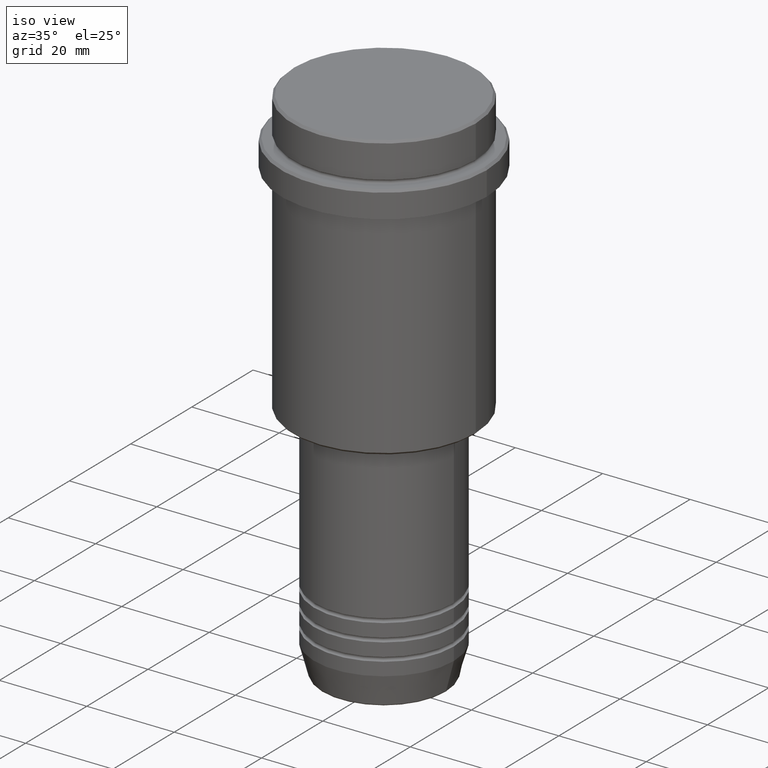
[diagram: clean part render]
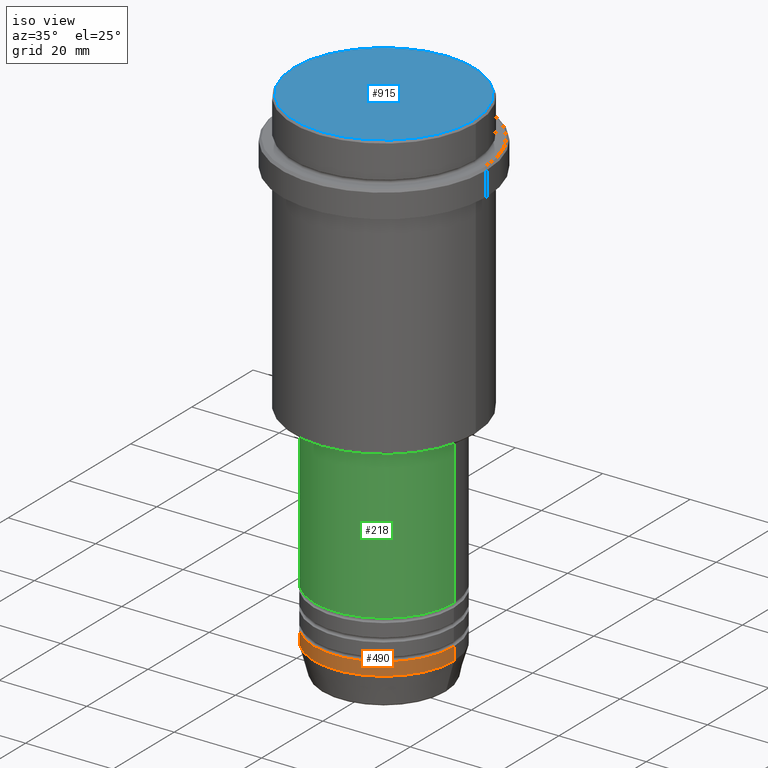
[diagram: same view with three faces highlighted in distinct colors, each labeled with its STEP entity id]
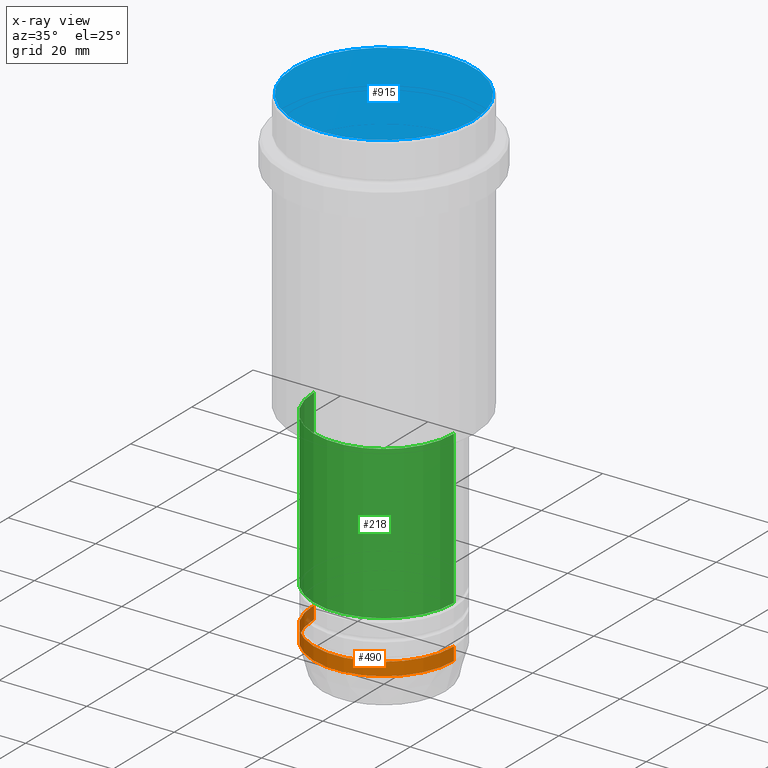
[diagram: x-ray of the same camera — body ghosted, the three highlighted faces saturated]
A machine part, iso view with three faces highlighted in distinct colors.
The next image is the same camera in x-ray (body ghosted, the three faces saturated) — at least one of them is partly hidden behind the body in this view.
Their STEP definitions:

[orange] entity #490 — the highlighted cylindrical surface (partial cylindrical patch) has radius 16 mm, axis along (-0, -0, 1).
#20 = CARTESIAN_POINT ( 'NONE',  ( 16.00000000000000000, 0.000000000000000000, -113.0000000000000000 ) ) ;
#25 = ORIENTED_EDGE ( 'NONE', *, *, #1344, .F. ) ;
#40 = DIRECTION ( 'NONE',  ( -0.000000000000000000, -0.000000000000000000, 1.000000000000000000 ) ) ;
#80 = VECTOR ( 'NONE', #1013, 1000.000000000000000 ) ;
#170 = CIRCLE ( 'NONE', #691, 16.00000000000000000 ) ;
#182 = ORIENTED_EDGE ( 'NONE', *, *, #1391, .T. ) ;
#193 = ORIENTED_EDGE ( 'NONE', *, *, #373, .F. ) ;
#203 = CARTESIAN_POINT ( 'NONE',  ( -16.00000000000000000, 1.959434878635765131E-15, -113.0000000000000000 ) ) ;
#210 = ORIENTED_EDGE ( 'NONE', *, *, #872, .T. ) ;
#214 = VECTOR ( 'NONE', #289, 1000.000000000000000 ) ;
#289 = DIRECTION ( 'NONE',  ( -0.000000000000000000, -0.000000000000000000, 1.000000000000000000 ) ) ;
#291 = CYLINDRICAL_SURFACE ( 'NONE', #1169, 16.00000000000000000 ) ;
#373 = EDGE_CURVE ( 'NONE', #638, #869, #936, .T. ) ;
#393 = CARTESIAN_POINT ( 'NONE',  ( 16.00000000000000000, 0.000000000000000000, -110.0000000000000000 ) ) ;
#420 = EDGE_LOOP ( 'NONE', ( #193, #182, #210, #25 ) ) ;
#467 = DIRECTION ( 'NONE',  ( 1.000000000000000000, 0.000000000000000000, 0.000000000000000000 ) ) ;
#490 = ADVANCED_FACE ( 'NONE', ( #848 ), #291, .T. ) ;
#513 = VERTEX_POINT ( 'NONE', #393 ) ;
#638 = VERTEX_POINT ( 'NONE', #203 ) ;
#678 = LINE ( 'NONE', #1224, #80 ) ;
#691 = AXIS2_PLACEMENT_3D ( 'NONE', #1035, #1057, #1145 ) ;
#848 = FACE_OUTER_BOUND ( 'NONE', #420, .T. ) ;
#869 = VERTEX_POINT ( 'NONE', #924 ) ;
#872 = EDGE_CURVE ( 'NONE', #1158, #513, #678, .T. ) ;
#924 = CARTESIAN_POINT ( 'NONE',  ( -16.00000000000000000, 1.959434878635765131E-15, -110.0000000000000000 ) ) ;
#936 = LINE ( 'NONE', #1374, #214 ) ;
#1013 = DIRECTION ( 'NONE',  ( -0.000000000000000000, -0.000000000000000000, 1.000000000000000000 ) ) ;
#1020 = CARTESIAN_POINT ( 'NONE',  ( 0.000000000000000000, 0.000000000000000000, -110.0000000000000000 ) ) ;
#1035 = CARTESIAN_POINT ( 'NONE',  ( 0.000000000000000000, 0.000000000000000000, -113.0000000000000000 ) ) ;
#1057 = DIRECTION ( 'NONE',  ( -0.000000000000000000, -0.000000000000000000, 1.000000000000000000 ) ) ;
#1089 = DIRECTION ( 'NONE',  ( 1.000000000000000000, 0.000000000000000000, 0.000000000000000000 ) ) ;
#1128 = AXIS2_PLACEMENT_3D ( 'NONE', #1020, #40, #467 ) ;
#1145 = DIRECTION ( 'NONE',  ( 1.000000000000000000, 0.000000000000000000, 0.000000000000000000 ) ) ;
#1158 = VERTEX_POINT ( 'NONE', #20 ) ;
#1169 = AXIS2_PLACEMENT_3D ( 'NONE', #1401, #1182, #1089 ) ;
#1182 = DIRECTION ( 'NONE',  ( -0.000000000000000000, -0.000000000000000000, 1.000000000000000000 ) ) ;
#1224 = CARTESIAN_POINT ( 'NONE',  ( 16.00000000000000000, 0.000000000000000000, 0.000000000000000000 ) ) ;
#1261 = CIRCLE ( 'NONE', #1128, 16.00000000000000000 ) ;
#1344 = EDGE_CURVE ( 'NONE', #869, #513, #1261, .T. ) ;
#1374 = CARTESIAN_POINT ( 'NONE',  ( -16.00000000000000000, 1.959434878635765131E-15, 0.000000000000000000 ) ) ;
#1391 = EDGE_CURVE ( 'NONE', #638, #1158, #170, .T. ) ;
#1401 = CARTESIAN_POINT ( 'NONE',  ( 0.000000000000000000, 0.000000000000000000, 0.000000000000000000 ) ) ;

[blue] entity #915 — the highlighted planar face has unit normal (0, -0, 1).
#46 = DIRECTION ( 'NONE',  ( 1.000000000000000000, 0.000000000000000000, 0.000000000000000000 ) ) ;
#57 = AXIS2_PLACEMENT_3D ( 'NONE', #796, #683, #46 ) ;
#112 = CARTESIAN_POINT ( 'NONE',  ( -20.50000000000001776, 0.000000000000000000, 0.000000000000000000 ) ) ;
#166 = DIRECTION ( 'NONE',  ( -0.000000000000000000, -0.000000000000000000, 1.000000000000000000 ) ) ;
#172 = EDGE_LOOP ( 'NONE', ( #309, #1051 ) ) ;
#237 = AXIS2_PLACEMENT_3D ( 'NONE', #654, #1112, #1094 ) ;
#309 = ORIENTED_EDGE ( 'NONE', *, *, #723, .T. ) ;
#584 = FACE_OUTER_BOUND ( 'NONE', #172, .T. ) ;
#595 = CARTESIAN_POINT ( 'NONE',  ( 0.000000000000000000, 0.000000000000000000, 0.000000000000000000 ) ) ;
#654 = CARTESIAN_POINT ( 'NONE',  ( 0.000000000000000000, 0.000000000000000000, 0.000000000000000000 ) ) ;
#683 = DIRECTION ( 'NONE',  ( 0.000000000000000000, -0.000000000000000000, 1.000000000000000000 ) ) ;
#723 = EDGE_CURVE ( 'NONE', #1187, #752, #1405, .T. ) ;
#752 = VERTEX_POINT ( 'NONE', #983 ) ;
#796 = CARTESIAN_POINT ( 'NONE',  ( 0.000000000000000000, 0.000000000000000000, 0.000000000000000000 ) ) ;
#824 = EDGE_CURVE ( 'NONE', #752, #1187, #971, .T. ) ;
#915 = ADVANCED_FACE ( 'NONE', ( #584 ), #1032, .T. ) ;
#971 = CIRCLE ( 'NONE', #1087, 20.50000000000001776 ) ;
#983 = CARTESIAN_POINT ( 'NONE',  ( 20.50000000000001776, 2.541142108230759057E-15, 0.000000000000000000 ) ) ;
#1032 = PLANE ( 'NONE',  #57 ) ;
#1051 = ORIENTED_EDGE ( 'NONE', *, *, #824, .T. ) ;
#1087 = AXIS2_PLACEMENT_3D ( 'NONE', #595, #166, #1359 ) ;
#1094 = DIRECTION ( 'NONE',  ( 1.000000000000000000, 0.000000000000000000, 0.000000000000000000 ) ) ;
#1112 = DIRECTION ( 'NONE',  ( -0.000000000000000000, -0.000000000000000000, 1.000000000000000000 ) ) ;
#1187 = VERTEX_POINT ( 'NONE', #112 ) ;
#1359 = DIRECTION ( 'NONE',  ( 1.000000000000000000, 0.000000000000000000, 0.000000000000000000 ) ) ;
#1405 = CIRCLE ( 'NONE', #237, 20.50000000000001776 ) ;

[green] entity #218 — the highlighted cylindrical surface (partial cylindrical patch) has radius 16 mm, axis along (-0, -0, 1).
#147 = VECTOR ( 'NONE', #567, 1000.000000000000000 ) ;
#162 = CARTESIAN_POINT ( 'NONE',  ( 0.000000000000000000, 0.000000000000000000, -100.9999999999999005 ) ) ;
#174 = DIRECTION ( 'NONE',  ( -0.000000000000000000, -0.000000000000000000, 1.000000000000000000 ) ) ;
#218 = ADVANCED_FACE ( 'NONE', ( #579 ), #1142, .T. ) ;
#238 = AXIS2_PLACEMENT_3D ( 'NONE', #162, #1229, #454 ) ;
#244 = EDGE_CURVE ( 'NONE', #341, #1060, #1348, .T. ) ;
#252 = EDGE_LOOP ( 'NONE', ( #463, #696, #601, #565 ) ) ;
#262 = AXIS2_PLACEMENT_3D ( 'NONE', #502, #174, #602 ) ;
#263 = CARTESIAN_POINT ( 'NONE',  ( 0.000000000000000000, 0.000000000000000000, 0.000000000000000000 ) ) ;
#280 = CARTESIAN_POINT ( 'NONE',  ( 16.00000000000000000, 0.000000000000000000, 0.000000000000000000 ) ) ;
#317 = EDGE_CURVE ( 'NONE', #1136, #637, #384, .T. ) ;
#341 = VERTEX_POINT ( 'NONE', #1062 ) ;
#367 = DIRECTION ( 'NONE',  ( -0.000000000000000000, -0.000000000000000000, 1.000000000000000000 ) ) ;
#384 = LINE ( 'NONE', #280, #147 ) ;
#454 = DIRECTION ( 'NONE',  ( 1.000000000000000000, 0.000000000000000000, 0.000000000000000000 ) ) ;
#463 = ORIENTED_EDGE ( 'NONE', *, *, #244, .F. ) ;
#502 = CARTESIAN_POINT ( 'NONE',  ( 0.000000000000000000, 0.000000000000000000, -66.00000000000000000 ) ) ;
#544 = CARTESIAN_POINT ( 'NONE',  ( 16.00000000000000000, 0.000000000000000000, -100.9999999999999005 ) ) ;
#565 = ORIENTED_EDGE ( 'NONE', *, *, #1017, .F. ) ;
#567 = DIRECTION ( 'NONE',  ( -0.000000000000000000, -0.000000000000000000, 1.000000000000000000 ) ) ;
#579 = FACE_OUTER_BOUND ( 'NONE', #252, .T. ) ;
#601 = ORIENTED_EDGE ( 'NONE', *, *, #317, .T. ) ;
#602 = DIRECTION ( 'NONE',  ( 1.000000000000000000, 0.000000000000000000, 0.000000000000000000 ) ) ;
#637 = VERTEX_POINT ( 'NONE', #1267 ) ;
#690 = CIRCLE ( 'NONE', #262, 16.00000000000000355 ) ;
#694 = DIRECTION ( 'NONE',  ( 1.000000000000000000, 0.000000000000000000, 0.000000000000000000 ) ) ;
#696 = ORIENTED_EDGE ( 'NONE', *, *, #840, .T. ) ;
#804 = VECTOR ( 'NONE', #1138, 1000.000000000000000 ) ;
#840 = EDGE_CURVE ( 'NONE', #341, #1136, #1127, .T. ) ;
#1017 = EDGE_CURVE ( 'NONE', #1060, #637, #690, .T. ) ;
#1025 = CARTESIAN_POINT ( 'NONE',  ( -16.00000000000000000, 1.959434878635765131E-15, 0.000000000000000000 ) ) ;
#1060 = VERTEX_POINT ( 'NONE', #1201 ) ;
#1062 = CARTESIAN_POINT ( 'NONE',  ( -16.00000000000000000, 1.959434878635765131E-15, -100.9999999999999005 ) ) ;
#1127 = CIRCLE ( 'NONE', #238, 16.00000000000000000 ) ;
#1136 = VERTEX_POINT ( 'NONE', #544 ) ;
#1138 = DIRECTION ( 'NONE',  ( -0.000000000000000000, -0.000000000000000000, 1.000000000000000000 ) ) ;
#1142 = CYLINDRICAL_SURFACE ( 'NONE', #1309, 16.00000000000000000 ) ;
#1201 = CARTESIAN_POINT ( 'NONE',  ( -16.00000000000000355, 1.959434878635765526E-15, -66.00000000000000000 ) ) ;
#1229 = DIRECTION ( 'NONE',  ( -0.000000000000000000, -0.000000000000000000, 1.000000000000000000 ) ) ;
#1267 = CARTESIAN_POINT ( 'NONE',  ( 16.00000000000000355, 0.000000000000000000, -66.00000000000000000 ) ) ;
#1309 = AXIS2_PLACEMENT_3D ( 'NONE', #263, #367, #694 ) ;
#1348 = LINE ( 'NONE', #1025, #804 ) ;